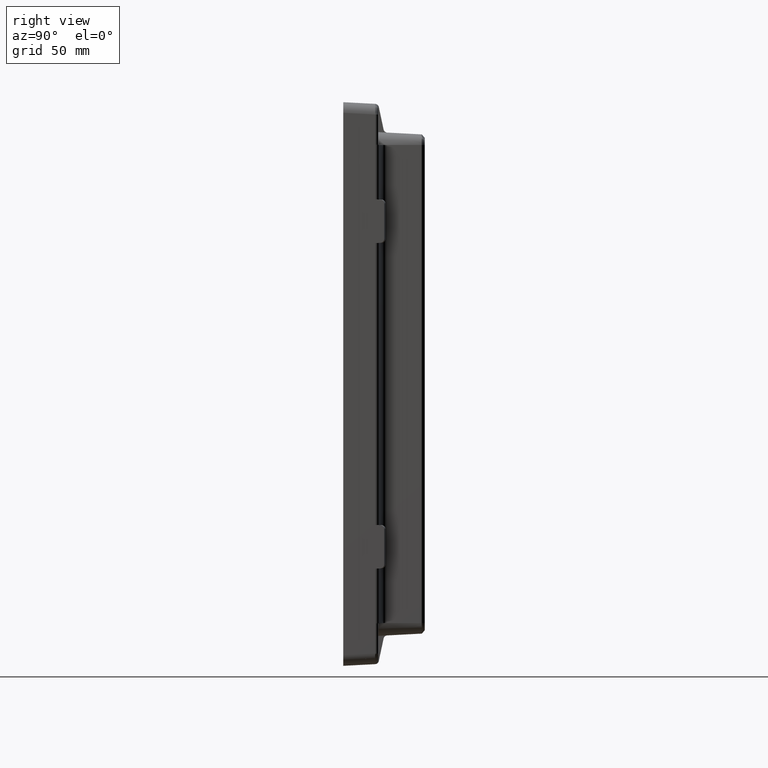
[diagram: clean part render]
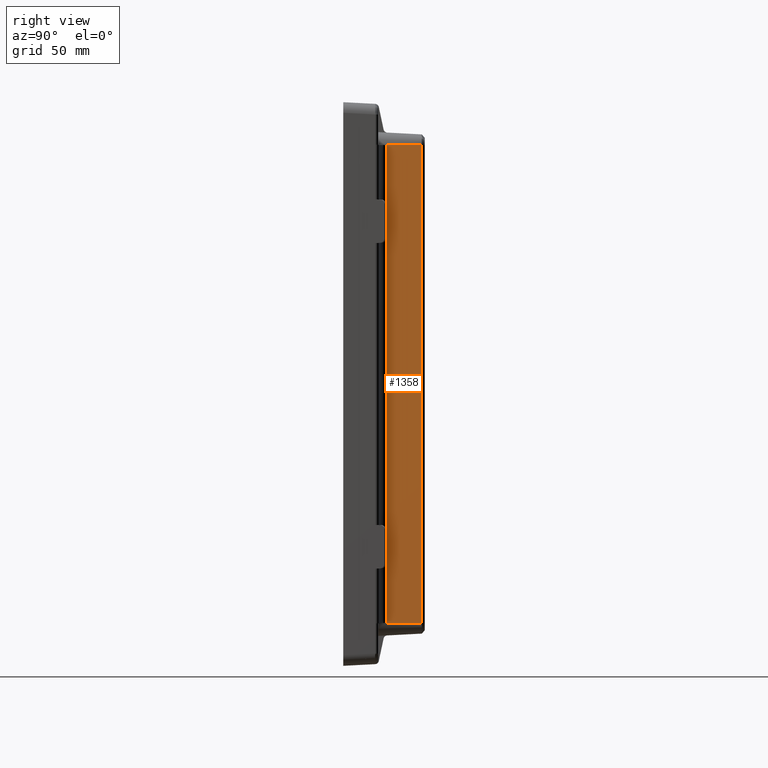
[diagram: same view with one face highlighted and labeled with its STEP entity id]
A machine part, right view. The second image highlights one B-rep face of the part: STEP entity #1358.
In plain terms, the highlighted planar face has unit normal (0.9986, 0.0523, -0).
Its self-contained STEP definition (entity closure, byte-faithful):
#121 = DIRECTION ( 'NONE',  ( 1.063432015924479400E-016, 7.682618886051487400E-034, 1.000000000000000000 ) ) ;
#135 = CARTESIAN_POINT ( 'NONE',  ( 103.9575904251523200, 10.34979123840179200, -123.4479306184816900 ) ) ;
#284 = CARTESIAN_POINT ( 'NONE',  ( 104.5000000000000400, 0.0000000000000000000, -130.5000000000000000 ) ) ;
#319 = EDGE_LOOP ( 'NONE', ( #3468, #3450, #4130, #5329, #795, #2164 ) ) ;
#335 = CARTESIAN_POINT ( 'NONE',  ( 103.7435256881992100, 14.43438974422673100, -124.3313808303828400 ) ) ;
#574 = DIRECTION ( 'NONE',  ( -0.05233595624294396000, 0.9986295347545739400, 2.644741964977524900E-016 ) ) ;
#634 = VERTEX_POINT ( 'NONE', #2008 ) ;
#795 = ORIENTED_EDGE ( 'NONE', *, *, #5007, .F. ) ;
#811 = PLANE ( 'NONE',  #5451 ) ;
#854 = EDGE_CURVE ( 'NONE', #4854, #6239, #5165, .T. ) ;
#1098 = VECTOR ( 'NONE', #574, 1000.000000000000000 ) ;
#1170 = CARTESIAN_POINT ( 'NONE',  ( 103.7435256881992100, 14.43438974422673100, -123.2338658815285900 ) ) ;
#1219 = DIRECTION ( 'NONE',  ( -0.05226442768871401900, 0.9972646886342372300, 0.05226442768871403200 ) ) ;
#1356 = LINE ( 'NONE', #135, #3687 ) ;
#1358 = ADVANCED_FACE ( 'NONE', ( #5722 ), #811, .T. ) ;
#1376 = DIRECTION ( 'NONE',  ( -0.05226442768871403200, 0.9972646886342372300, -0.05226442768871403200 ) ) ;
#1426 = DIRECTION ( 'NONE',  ( -1.086232507946712900E-016, 4.350593048236938400E-017, -1.000000000000000000 ) ) ;
#1532 = EDGE_CURVE ( 'NONE', #2875, #634, #5232, .T. ) ;
#1823 = EDGE_CURVE ( 'NONE', #634, #6350, #2249, .T. ) ;
#2008 = CARTESIAN_POINT ( 'NONE',  ( 102.7966394387410500, 32.50205569786810900, -123.3041769975908600 ) ) ;
#2164 = ORIENTED_EDGE ( 'NONE', *, *, #1532, .T. ) ;
#2224 = VECTOR ( 'NONE', #5569, 1000.000000000000000 ) ;
#2243 = EDGE_CURVE ( 'NONE', #6239, #3797, #4027, .T. ) ;
#2249 = LINE ( 'NONE', #4314, #4747 ) ;
#2437 = CARTESIAN_POINT ( 'NONE',  ( 102.7966394387410500, 32.50205569786810900, 123.3041769975908600 ) ) ;
#2853 = CARTESIAN_POINT ( 'NONE',  ( 103.7435256881992400, 14.43438974422672100, 123.2338658815286000 ) ) ;
#2875 = VERTEX_POINT ( 'NONE', #6025 ) ;
#3004 = EDGE_CURVE ( 'NONE', #4854, #6350, #4906, .T. ) ;
#3450 = ORIENTED_EDGE ( 'NONE', *, *, #3004, .F. ) ;
#3468 = ORIENTED_EDGE ( 'NONE', *, *, #1823, .T. ) ;
#3532 = CARTESIAN_POINT ( 'NONE',  ( 103.8138368042614800, 13.09277372797571300, 123.3041769975908700 ) ) ;
#3536 = VECTOR ( 'NONE', #1376, 1000.000000000000200 ) ;
#3687 = VECTOR ( 'NONE', #1219, 1000.000000000000200 ) ;
#3797 = VERTEX_POINT ( 'NONE', #1170 ) ;
#4011 = CARTESIAN_POINT ( 'NONE',  ( 102.7966394387410500, 32.50205569786810900, 123.3041769975908600 ) ) ;
#4027 = LINE ( 'NONE', #335, #5493 ) ;
#4130 = ORIENTED_EDGE ( 'NONE', *, *, #854, .T. ) ;
#4314 = CARTESIAN_POINT ( 'NONE',  ( 102.7966394387410800, 32.50205569786810100, 123.2256730632263500 ) ) ;
#4467 = CARTESIAN_POINT ( 'NONE',  ( 103.9575904251523500, 10.34979123840179400, 123.4479306184817100 ) ) ;
#4696 = CARTESIAN_POINT ( 'NONE',  ( 102.7966394387410500, 32.50205569786810900, -123.3041769975908600 ) ) ;
#4747 = VECTOR ( 'NONE', #121, 1000.000000000000000 ) ;
#4854 = VERTEX_POINT ( 'NONE', #3532 ) ;
#4906 = LINE ( 'NONE', #4011, #2224 ) ;
#4928 = DIRECTION ( 'NONE',  ( 0.9986295347545739400, 0.05233595624294395300, -1.061974619305781700E-016 ) ) ;
#5007 = EDGE_CURVE ( 'NONE', #2875, #3797, #1356, .T. ) ;
#5165 = LINE ( 'NONE', #4467, #3536 ) ;
#5232 = LINE ( 'NONE', #4696, #1098 ) ;
#5329 = ORIENTED_EDGE ( 'NONE', *, *, #2243, .T. ) ;
#5451 = AXIS2_PLACEMENT_3D ( 'NONE', #284, #4928, #6535 ) ;
#5493 = VECTOR ( 'NONE', #1426, 1000.000000000000000 ) ;
#5569 = DIRECTION ( 'NONE',  ( -0.05233595624294395300, 0.9986295347545739400, -7.140278967268522900E-016 ) ) ;
#5722 = FACE_OUTER_BOUND ( 'NONE', #319, .T. ) ;
#6025 = CARTESIAN_POINT ( 'NONE',  ( 103.8138368042615000, 13.09277372797561500, -123.3041769975908600 ) ) ;
#6239 = VERTEX_POINT ( 'NONE', #2853 ) ;
#6350 = VERTEX_POINT ( 'NONE', #2437 ) ;
#6535 = DIRECTION ( 'NONE',  ( -0.05233595624294395300, 0.9986295347545739400, 0.0000000000000000000 ) ) ;